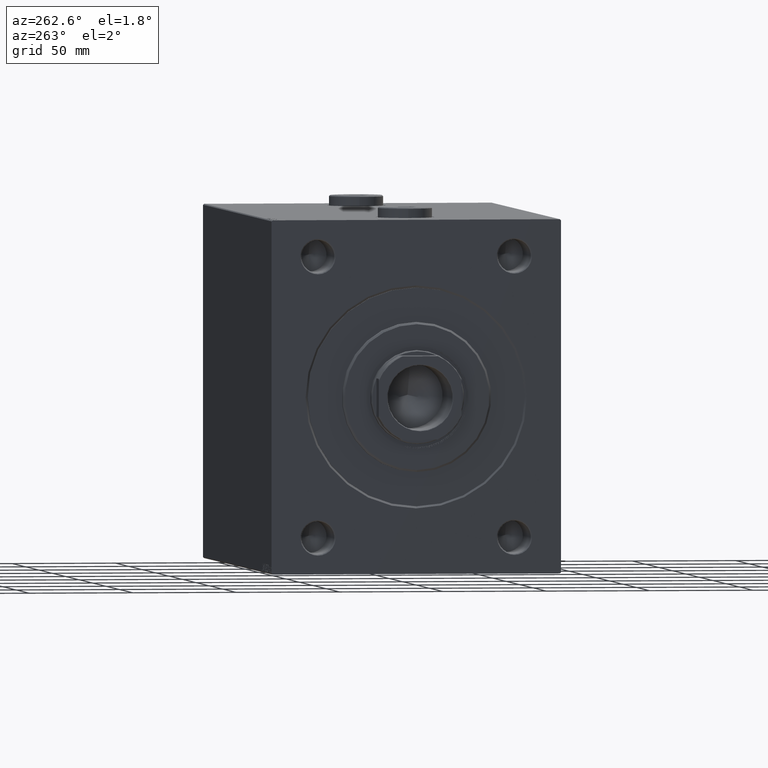
[diagram: clean part render]
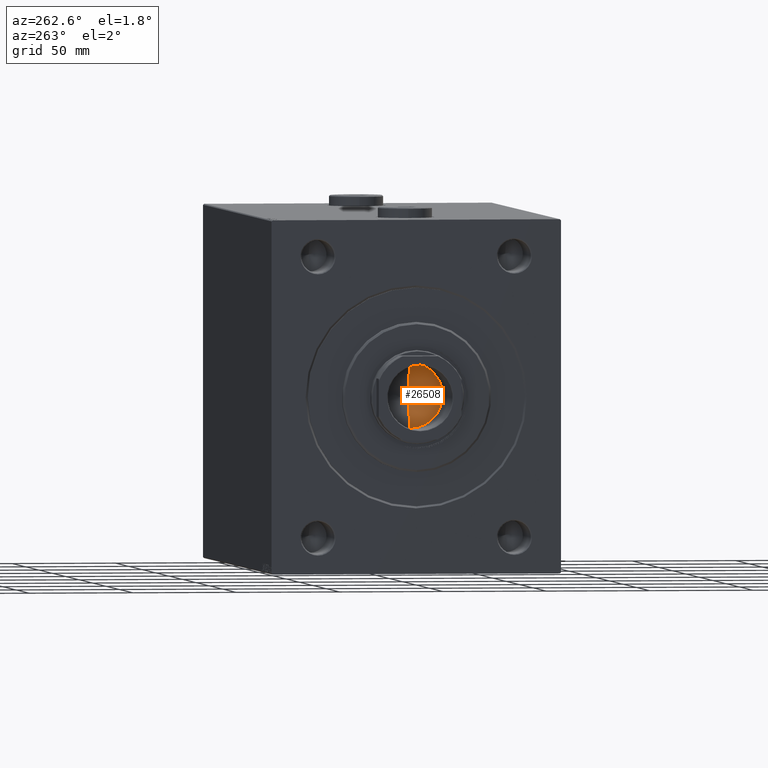
[diagram: same view with one face highlighted and labeled with its STEP entity id]
A machine part, auxiliary view. The second image highlights one B-rep face of the part: STEP entity #26508.
In plain terms, the highlighted conical surface has half-angle 59 deg.
Its self-contained STEP definition (entity closure, byte-faithful):
#562 = CARTESIAN_POINT ( 'NONE',  ( -1.199718644317817648E-14, 0.000000000000000000, 196.5364452503159498 ) ) ;
#888 = VERTEX_POINT ( 'NONE', #562 ) ;
#1537 = CARTESIAN_POINT ( 'NONE',  ( 15.74999999999999289, 0.000000000000000000, 206.0000000000000284 ) ) ;
#3301 = CARTESIAN_POINT ( 'NONE',  ( -15.74999999999999289, 1.928818708657080556E-15, 206.0000000000000284 ) ) ;
#5110 = AXIS2_PLACEMENT_3D ( 'NONE', #36821, #40057, #15560 ) ;
#5963 = VERTEX_POINT ( 'NONE', #41206 ) ;
#6081 = DIRECTION ( 'NONE',  ( 1.000000000000000000, 0.000000000000000000, 0.000000000000000000 ) ) ;
#6191 = EDGE_CURVE ( 'NONE', #888, #8817, #32637, .T. ) ;
#6366 = EDGE_LOOP ( 'NONE', ( #38029, #18619, #42999 ) ) ;
#8382 = EDGE_CURVE ( 'NONE', #5963, #8817, #32290, .T. ) ;
#8817 = VERTEX_POINT ( 'NONE', #1537 ) ;
#11414 = AXIS2_PLACEMENT_3D ( 'NONE', #34026, #13223, #6081 ) ;
#11841 = DIRECTION ( 'NONE',  ( 0.8571673007021120005, 0.000000000000000000, 0.5150380749100547106 ) ) ;
#13223 = DIRECTION ( 'NONE',  ( -0.000000000000000000, -0.000000000000000000, 1.000000000000000000 ) ) ;
#13924 = DIRECTION ( 'NONE',  ( -0.8571673007021120005, 1.049727191138618326E-16, 0.5150380749100547106 ) ) ;
#15560 = DIRECTION ( 'NONE',  ( 1.000000000000000000, 0.000000000000000000, 0.000000000000000000 ) ) ;
#15892 = EDGE_CURVE ( 'NONE', #888, #5963, #34939, .T. ) ;
#18619 = ORIENTED_EDGE ( 'NONE', *, *, #15892, .T. ) ;
#26508 = ADVANCED_FACE ( 'NONE', ( #27077 ), #32052, .F. ) ;
#27077 = FACE_OUTER_BOUND ( 'NONE', #6366, .T. ) ;
#32052 = CONICAL_SURFACE ( 'NONE', #11414, 15.74999999999999289, 1.029744258676653867 ) ;
#32290 = CIRCLE ( 'NONE', #5110, 15.74999999999999289 ) ;
#32496 = VECTOR ( 'NONE', #13924, 1000.000000000000000 ) ;
#32637 = LINE ( 'NONE', #43731, #41932 ) ;
#34026 = CARTESIAN_POINT ( 'NONE',  ( 0.000000000000000000, 0.000000000000000000, 206.0000000000000284 ) ) ;
#34939 = LINE ( 'NONE', #3301, #32496 ) ;
#36821 = CARTESIAN_POINT ( 'NONE',  ( 0.000000000000000000, 0.000000000000000000, 206.0000000000000284 ) ) ;
#38029 = ORIENTED_EDGE ( 'NONE', *, *, #6191, .F. ) ;
#40057 = DIRECTION ( 'NONE',  ( -0.000000000000000000, -0.000000000000000000, 1.000000000000000000 ) ) ;
#41206 = CARTESIAN_POINT ( 'NONE',  ( -15.74999999999999289, 1.928818708657080556E-15, 206.0000000000000284 ) ) ;
#41932 = VECTOR ( 'NONE', #11841, 1000.000000000000000 ) ;
#42999 = ORIENTED_EDGE ( 'NONE', *, *, #8382, .T. ) ;
#43731 = CARTESIAN_POINT ( 'NONE',  ( 15.74999999999999289, 0.000000000000000000, 206.0000000000000284 ) ) ;